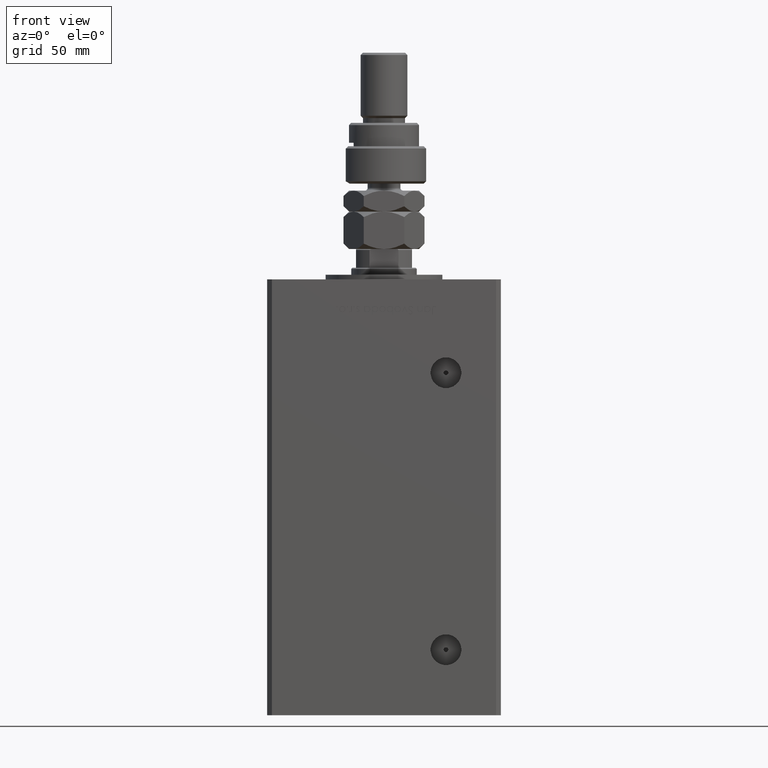
[diagram: clean part render]
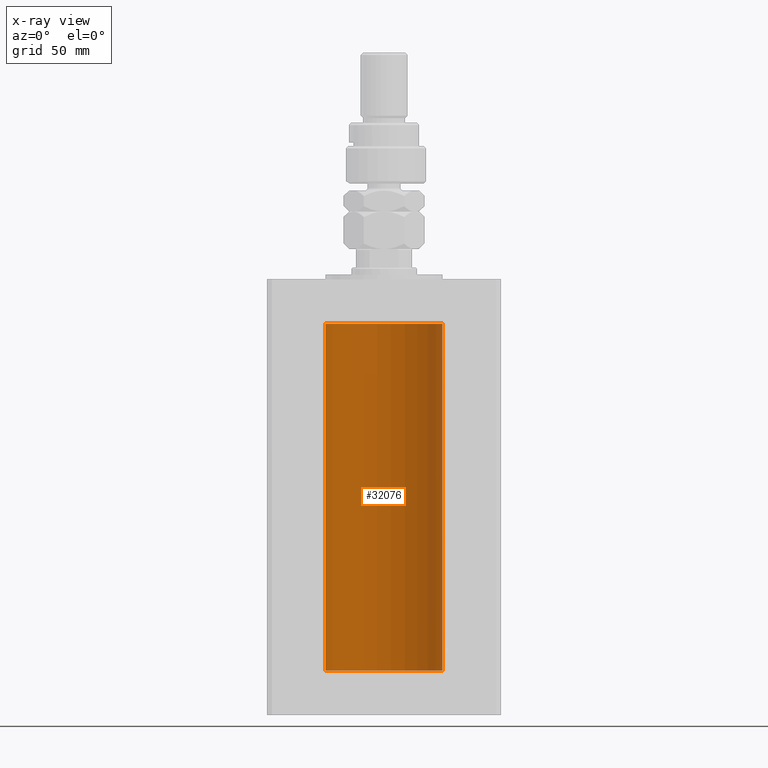
[diagram: x-ray — body ghosted, one internal face saturated and labeled with its STEP entity id]
A machine part, front view, then the same camera in x-ray: the body is ghosted and one INTERNAL B-rep face — a face not visible from any outside direction — is saturated and labeled: STEP entity #32076.
In plain terms, the highlighted cylindrical surface (partial cylindrical patch) has radius 25 mm, axis along (-0, -0, -1).
Its self-contained STEP definition (entity closure, byte-faithful):
#356 = CARTESIAN_POINT ( 'NONE',  ( 0.000000000000000000, 0.000000000000000000, 148.5000000000000000 ) ) ;
#684 = ORIENTED_EDGE ( 'NONE', *, *, #6864, .F. ) ;
#1628 = DIRECTION ( 'NONE',  ( -0.000000000000000000, -0.000000000000000000, -1.000000000000000000 ) ) ;
#2440 = CARTESIAN_POINT ( 'NONE',  ( 0.000000000000000000, 0.000000000000000000, 0.000000000000000000 ) ) ;
#3171 = AXIS2_PLACEMENT_3D ( 'NONE', #356, #47082, #42623 ) ;
#4600 = AXIS2_PLACEMENT_3D ( 'NONE', #2440, #19131, #19664 ) ;
#6864 = EDGE_CURVE ( 'NONE', #13373, #51024, #35291, .T. ) ;
#8418 = VECTOR ( 'NONE', #29277, 1000.000000000000000 ) ;
#10236 = AXIS2_PLACEMENT_3D ( 'NONE', #13144, #50957, #19902 ) ;
#11302 = VERTEX_POINT ( 'NONE', #39857 ) ;
#11549 = FACE_OUTER_BOUND ( 'NONE', #26279, .T. ) ;
#12327 = CARTESIAN_POINT ( 'NONE',  ( -25.00000000000000000, 0.000000000000000000, 148.5000000000000000 ) ) ;
#13144 = CARTESIAN_POINT ( 'NONE',  ( 0.000000000000000000, 0.000000000000000000, 148.5000000000000000 ) ) ;
#13373 = VERTEX_POINT ( 'NONE', #21508 ) ;
#17560 = ORIENTED_EDGE ( 'NONE', *, *, #22192, .F. ) ;
#18940 = CIRCLE ( 'NONE', #4600, 25.00000000000000000 ) ;
#19131 = DIRECTION ( 'NONE',  ( -0.000000000000000000, 0.000000000000000000, 1.000000000000000000 ) ) ;
#19664 = DIRECTION ( 'NONE',  ( 1.000000000000000000, 0.000000000000000000, 0.000000000000000000 ) ) ;
#19902 = DIRECTION ( 'NONE',  ( -1.000000000000000000, 0.000000000000000000, 0.000000000000000000 ) ) ;
#21508 = CARTESIAN_POINT ( 'NONE',  ( 25.00000000000000000, 3.061616997868383043E-15, 148.5000000000000000 ) ) ;
#22192 = EDGE_CURVE ( 'NONE', #51024, #45534, #18940, .T. ) ;
#25635 = VECTOR ( 'NONE', #1628, 1000.000000000000000 ) ;
#26279 = EDGE_LOOP ( 'NONE', ( #684, #52151, #31164, #17560 ) ) ;
#29277 = DIRECTION ( 'NONE',  ( -0.000000000000000000, -0.000000000000000000, -1.000000000000000000 ) ) ;
#31164 = ORIENTED_EDGE ( 'NONE', *, *, #52013, .T. ) ;
#31385 = CARTESIAN_POINT ( 'NONE',  ( 25.00000000000000000, 3.061616997868383043E-15, 148.5000000000000000 ) ) ;
#32076 = ADVANCED_FACE ( 'NONE', ( #11549 ), #42591, .F. ) ;
#35291 = LINE ( 'NONE', #31385, #25635 ) ;
#39857 = CARTESIAN_POINT ( 'NONE',  ( -25.00000000000000000, 0.000000000000000000, 148.5000000000000000 ) ) ;
#41611 = CARTESIAN_POINT ( 'NONE',  ( -25.00000000000000000, 0.000000000000000000, 0.000000000000000000 ) ) ;
#42591 = CYLINDRICAL_SURFACE ( 'NONE', #10236, 25.00000000000000000 ) ;
#42623 = DIRECTION ( 'NONE',  ( 1.000000000000000000, 0.000000000000000000, 0.000000000000000000 ) ) ;
#45534 = VERTEX_POINT ( 'NONE', #41611 ) ;
#46677 = CIRCLE ( 'NONE', #3171, 25.00000000000000000 ) ;
#47082 = DIRECTION ( 'NONE',  ( -0.000000000000000000, 0.000000000000000000, 1.000000000000000000 ) ) ;
#50413 = LINE ( 'NONE', #12327, #8418 ) ;
#50957 = DIRECTION ( 'NONE',  ( -0.000000000000000000, -0.000000000000000000, -1.000000000000000000 ) ) ;
#51024 = VERTEX_POINT ( 'NONE', #53500 ) ;
#52013 = EDGE_CURVE ( 'NONE', #11302, #45534, #50413, .T. ) ;
#52151 = ORIENTED_EDGE ( 'NONE', *, *, #54777, .T. ) ;
#53500 = CARTESIAN_POINT ( 'NONE',  ( 25.00000000000000000, 3.061616997868383043E-15, 0.000000000000000000 ) ) ;
#54777 = EDGE_CURVE ( 'NONE', #13373, #11302, #46677, .T. ) ;